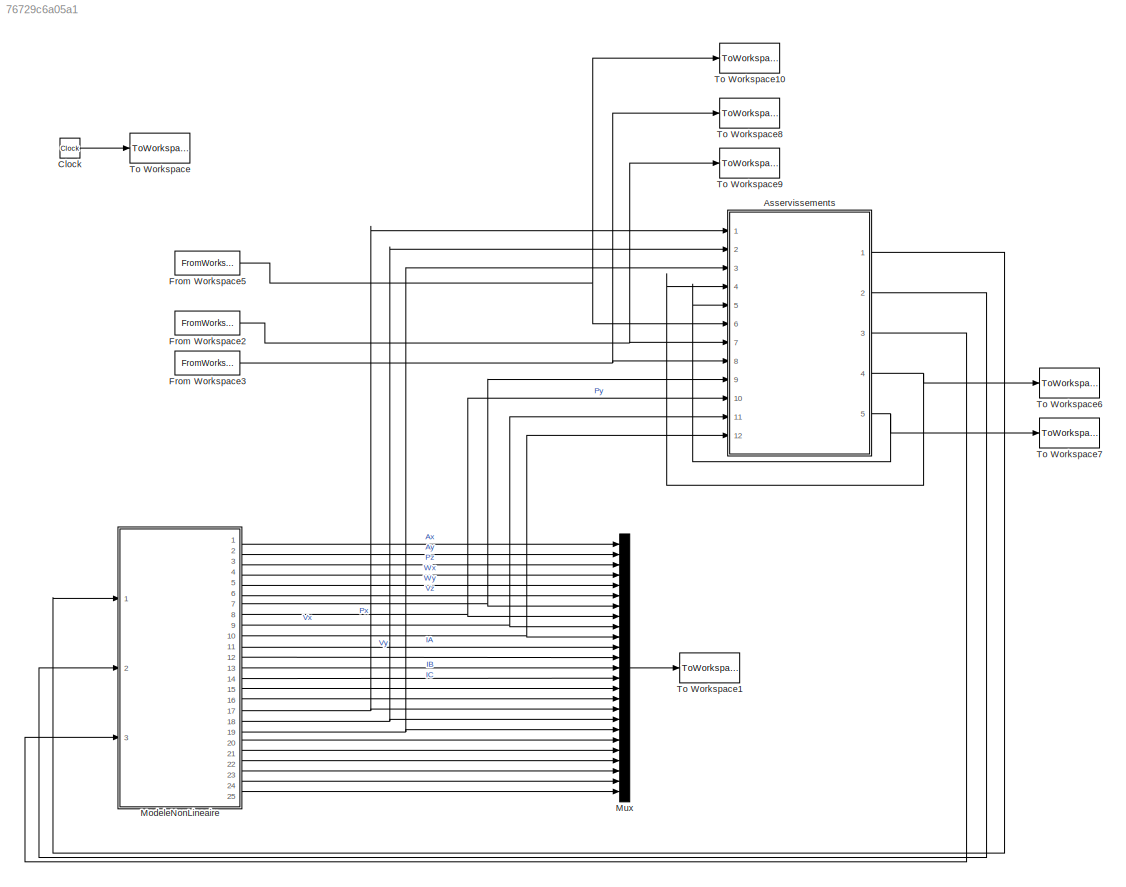
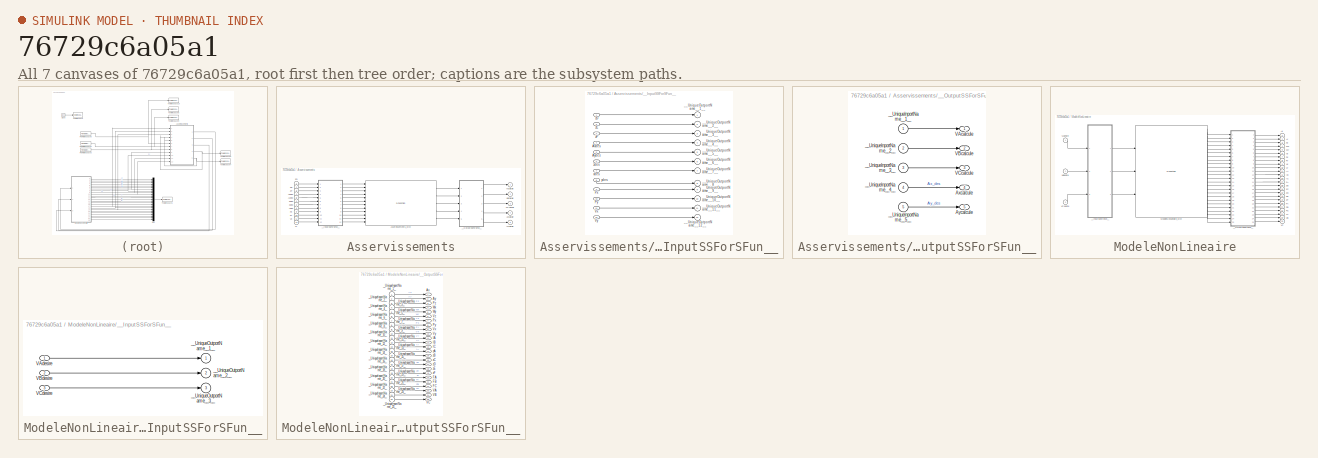
[diagram: thumbnail index - all 7 canvases of the model, root first then tree order]
MODEL slx_76729c6a05a1
KIND model
BLOCK [SubSystem] Asservissements
  Ports = [12, 5]
  RequestExecContextInheritance = off
BLOCK [S-Function] Asservissements/Asservissements_sfcn
  CopyFcn = if ~strcmp(get_param(gcb,'Linkstatus'),'none') && ...\n~strcmp(get_param(gcb,'Linkstatus'),'implicit')      \n  set_param(gcb,'LinkStatus','none');                \nend
  EnableBusSupport = off
  FunctionName = Asservissements_sf
  Ports = [12, 5]
BLOCK [Outport] Asservissements/Axcalcule
  IconDisplay = Port number
  Port = 4
BLOCK [Inport] Asservissements/Axdes
  IconDisplay = Port number
  Port = 4
BLOCK [Outport] Asservissements/Aycalcule
  IconDisplay = Port number
  Port = 5
BLOCK [Inport] Asservissements/Aydes
  IconDisplay = Port number
  Port = 5
BLOCK [Inport] Asservissements/Px
  IconDisplay = Port number
  Port = 9
BLOCK [Inport] Asservissements/Py
  IconDisplay = Port number
  Port = 10
BLOCK [Outport] Asservissements/VAcalcule
  IconDisplay = Port number
BLOCK [Outport] Asservissements/VBcalcule
  IconDisplay = Port number
  Port = 2
BLOCK [Outport] Asservissements/VCcalcule
  IconDisplay = Port number
  Port = 3
BLOCK [Inport] Asservissements/Vx
  IconDisplay = Port number
  Port = 11
BLOCK [Inport] Asservissements/Vy
  IconDisplay = Port number
  Port = 12
BLOCK [SubSystem] Asservissements/__InputSSForSFun__
  PermitHierarchicalResolution = ExplicitOnly
  Ports = [12, 12]
  RequestExecContextInheritance = off
BLOCK [Inport] Asservissements/__InputSSForSFun__/Axdes
  IconDisplay = Port number
  Port = 4
BLOCK [Inport] Asservissements/__InputSSForSFun__/Aydes
  IconDisplay = Port number
  Port = 5
BLOCK [Inport] Asservissements/__InputSSForSFun__/Px
  IconDisplay = Port number
  Port = 9
BLOCK [Inport] Asservissements/__InputSSForSFun__/Py
  IconDisplay = Port number
  Port = 10
BLOCK [Inport] Asservissements/__InputSSForSFun__/Vx
  IconDisplay = Port number
  Port = 11
BLOCK [Inport] Asservissements/__InputSSForSFun__/Vy
  IconDisplay = Port number
  Port = 12
BLOCK [Outport] Asservissements/__InputSSForSFun__/__UniqueOutportName__10__
  IconDisplay = Port number
  Port = 10
BLOCK [Outport] Asservissements/__InputSSForSFun__/__UniqueOutportName__11__
  IconDisplay = Port number
  Port = 11
BLOCK [Outport] Asservissements/__InputSSForSFun__/__UniqueOutportName__12__
  IconDisplay = Port number
  Port = 12
BLOCK [Outport] Asservissements/__InputSSForSFun__/__UniqueOutportName__1__
  IconDisplay = Port number
BLOCK [Outport] Asservissements/__InputSSForSFun__/__UniqueOutportName__2__
  IconDisplay = Port number
  Port = 2
BLOCK [Outport] Asservissements/__InputSSForSFun__/__UniqueOutportName__3__
  IconDisplay = Port number
  Port = 3
BLOCK [Outport] Asservissements/__InputSSForSFun__/__UniqueOutportName__4__
  IconDisplay = Port number
  Port = 4
BLOCK [Outport] Asservissements/__InputSSForSFun__/__UniqueOutportName__5__
  IconDisplay = Port number
  Port = 5
BLOCK [Outport] Asservissements/__InputSSForSFun__/__UniqueOutportName__6__
  IconDisplay = Port number
  Port = 6
BLOCK [Outport] Asservissements/__InputSSForSFun__/__UniqueOutportName__7__
  IconDisplay = Port number
  Port = 7
BLOCK [Outport] Asservissements/__InputSSForSFun__/__UniqueOutportName__8__
  IconDisplay = Port number
  Port = 8
BLOCK [Outport] Asservissements/__InputSSForSFun__/__UniqueOutportName__9__
  IconDisplay = Port number
  Port = 9
BLOCK [Inport] Asservissements/__InputSSForSFun__/xdes
  IconDisplay = Port number
  Port = 7
BLOCK [Inport] Asservissements/__InputSSForSFun__/ydes
  IconDisplay = Port number
  Port = 8
BLOCK [Inport] Asservissements/__InputSSForSFun__/zD
  IconDisplay = Port number
BLOCK [Inport] Asservissements/__InputSSForSFun__/zE
  IconDisplay = Port number
  Port = 2
BLOCK [Inport] Asservissements/__InputSSForSFun__/zF
  IconDisplay = Port number
  Port = 3
BLOCK [Inport] Asservissements/__InputSSForSFun__/zdes
  IconDisplay = Port number
  Port = 6
BLOCK [SubSystem] Asservissements/__OutputSSForSFun__
  PermitHierarchicalResolution = ExplicitOnly
  Ports = [5, 5]
  RequestExecContextInheritance = off
BLOCK [Outport] Asservissements/__OutputSSForSFun__/Axcalcule
  IconDisplay = Port number
  Port = 4
BLOCK [Outport] Asservissements/__OutputSSForSFun__/Aycalcule
  IconDisplay = Port number
  Port = 5
BLOCK [Outport] Asservissements/__OutputSSForSFun__/VAcalcule
  IconDisplay = Port number
BLOCK [Outport] Asservissements/__OutputSSForSFun__/VBcalcule
  IconDisplay = Port number
  Port = 2
BLOCK [Outport] Asservissements/__OutputSSForSFun__/VCcalcule
  IconDisplay = Port number
  Port = 3
BLOCK [Inport] Asservissements/__OutputSSForSFun__/__UniqueInportName__1__
  IconDisplay = Port number
BLOCK [Inport] Asservissements/__OutputSSForSFun__/__UniqueInportName__2__
  IconDisplay = Port number
  Port = 2
BLOCK [Inport] Asservissements/__OutputSSForSFun__/__UniqueInportName__3__
  IconDisplay = Port number
  Port = 3
BLOCK [Inport] Asservissements/__OutputSSForSFun__/__UniqueInportName__4__
  IconDisplay = Port number
  Port = 4
BLOCK [Inport] Asservissements/__OutputSSForSFun__/__UniqueInportName__5__
  IconDisplay = Port number
  Port = 5
BLOCK [Inport] Asservissements/xdes
  IconDisplay = Port number
  Port = 7
BLOCK [Inport] Asservissements/ydes
  IconDisplay = Port number
  Port = 8
BLOCK [Inport] Asservissements/zD
  IconDisplay = Port number
BLOCK [Inport] Asservissements/zE
  IconDisplay = Port number
  Port = 2
BLOCK [Inport] Asservissements/zF
  IconDisplay = Port number
  Port = 3
BLOCK [Inport] Asservissements/zdes
  IconDisplay = Port number
  Port = 6
BLOCK [Clock] Clock
BLOCK [FromWorkspace] From Workspace2
  Interpolate = off
  OutputAfterFinalValue = Holding final value
  SampleTime = 0
  VariableName = x_des
  ZeroCross = on
BLOCK [FromWorkspace] From Workspace3
  Interpolate = off
  OutputAfterFinalValue = Holding final value
  SampleTime = 0
  VariableName = y_des
  ZeroCross = on
BLOCK [FromWorkspace] From Workspace5
  Interpolate = off
  OutputAfterFinalValue = Holding final value
  SampleTime = 0
  VariableName = z_des
  ZeroCross = on
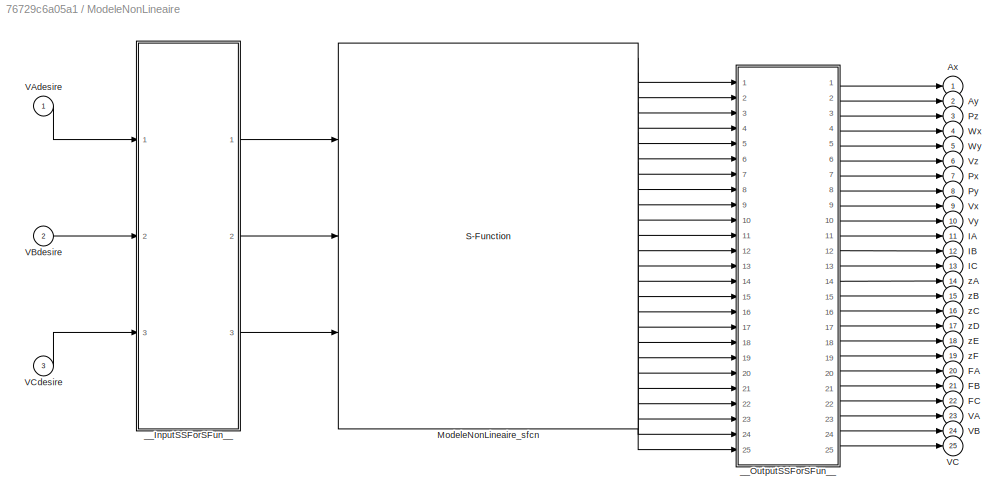
BLOCK [SubSystem] ModeleNonLineaire
  Ports = [3, 25]
  RequestExecContextInheritance = off
BLOCK [Outport] ModeleNonLineaire/Ax
  IconDisplay = Port number
BLOCK [Outport] ModeleNonLineaire/Ay
  IconDisplay = Port number
  Port = 2
BLOCK [Outport] ModeleNonLineaire/FA
  IconDisplay = Port number
  Port = 20
BLOCK [Outport] ModeleNonLineaire/FB
  IconDisplay = Port number
  Port = 21
BLOCK [Outport] ModeleNonLineaire/FC
  IconDisplay = Port number
  Port = 22
BLOCK [Outport] ModeleNonLineaire/IA
  IconDisplay = Port number
  Port = 11
BLOCK [Outport] ModeleNonLineaire/IB
  IconDisplay = Port number
  Port = 12
BLOCK [Outport] ModeleNonLineaire/IC
  IconDisplay = Port number
  Port = 13
BLOCK [S-Function] ModeleNonLineaire/ModeleNonLineaire_sfcn
  CopyFcn = if ~strcmp(get_param(gcb,'Linkstatus'),'none') && ...\n~strcmp(get_param(gcb,'Linkstatus'),'implicit')      \n  set_param(gcb,'LinkStatus','none');                \nend
  EnableBusSupport = off
  FunctionName = ModeleNonLineaire_sf
  Ports = [3, 25]
BLOCK [Outport] ModeleNonLineaire/Px
  IconDisplay = Port number
  Port = 7
BLOCK [Outport] ModeleNonLineaire/Py
  IconDisplay = Port number
  Port = 8
BLOCK [Outport] ModeleNonLineaire/Pz
  IconDisplay = Port number
  Port = 3
BLOCK [Outport] ModeleNonLineaire/VA
  IconDisplay = Port number
  Port = 23
BLOCK [Inport] ModeleNonLineaire/VAdesire
  IconDisplay = Port number
BLOCK [Outport] ModeleNonLineaire/VB
  IconDisplay = Port number
  Port = 24
BLOCK [Inport] ModeleNonLineaire/VBdesire
  IconDisplay = Port number
  Port = 2
BLOCK [Outport] ModeleNonLineaire/VC
  IconDisplay = Port number
  Port = 25
BLOCK [Inport] ModeleNonLineaire/VCdesire
  IconDisplay = Port number
  Port = 3
BLOCK [Outport] ModeleNonLineaire/Vx
  IconDisplay = Port number
  Port = 9
BLOCK [Outport] ModeleNonLineaire/Vy
  IconDisplay = Port number
  Port = 10
BLOCK [Outport] ModeleNonLineaire/Vz
  IconDisplay = Port number
  Port = 6
BLOCK [Outport] ModeleNonLineaire/Wx
  IconDisplay = Port number
  Port = 4
BLOCK [Outport] ModeleNonLineaire/Wy
  IconDisplay = Port number
  Port = 5
BLOCK [SubSystem] ModeleNonLineaire/__InputSSForSFun__
  PermitHierarchicalResolution = ExplicitOnly
  Ports = [3, 3]
  RequestExecContextInheritance = off
BLOCK [Inport] ModeleNonLineaire/__InputSSForSFun__/VAdesire
  IconDisplay = Port number
BLOCK [Inport] ModeleNonLineaire/__InputSSForSFun__/VBdesire
  IconDisplay = Port number
  Port = 2
BLOCK [Inport] ModeleNonLineaire/__InputSSForSFun__/VCdesire
  IconDisplay = Port number
  Port = 3
BLOCK [Outport] ModeleNonLineaire/__InputSSForSFun__/__UniqueOutportName__1__
  IconDisplay = Port number
BLOCK [Outport] ModeleNonLineaire/__InputSSForSFun__/__UniqueOutportName__2__
  IconDisplay = Port number
  Port = 2
BLOCK [Outport] ModeleNonLineaire/__InputSSForSFun__/__UniqueOutportName__3__
  IconDisplay = Port number
  Port = 3
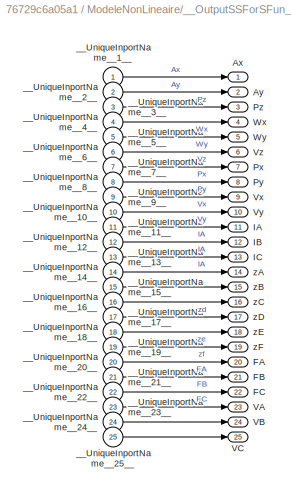
BLOCK [SubSystem] ModeleNonLineaire/__OutputSSForSFun__
  PermitHierarchicalResolution = ExplicitOnly
  Ports = [25, 25]
  RequestExecContextInheritance = off
BLOCK [Outport] ModeleNonLineaire/__OutputSSForSFun__/Ax
  IconDisplay = Port number
BLOCK [Outport] ModeleNonLineaire/__OutputSSForSFun__/Ay
  IconDisplay = Port number
  Port = 2
BLOCK [Outport] ModeleNonLineaire/__OutputSSForSFun__/FA
  IconDisplay = Port number
  Port = 20
BLOCK [Outport] ModeleNonLineaire/__OutputSSForSFun__/FB
  IconDisplay = Port number
  Port = 21
BLOCK [Outport] ModeleNonLineaire/__OutputSSForSFun__/FC
  IconDisplay = Port number
  Port = 22
BLOCK [Outport] ModeleNonLineaire/__OutputSSForSFun__/IA
  IconDisplay = Port number
  Port = 11
BLOCK [Outport] ModeleNonLineaire/__OutputSSForSFun__/IB
  IconDisplay = Port number
  Port = 12
BLOCK [Outport] ModeleNonLineaire/__OutputSSForSFun__/IC
  IconDisplay = Port number
  Port = 13
BLOCK [Outport] ModeleNonLineaire/__OutputSSForSFun__/Px
  IconDisplay = Port number
  Port = 7
BLOCK [Outport] ModeleNonLineaire/__OutputSSForSFun__/Py
  IconDisplay = Port number
  Port = 8
BLOCK [Outport] ModeleNonLineaire/__OutputSSForSFun__/Pz
  IconDisplay = Port number
  Port = 3
BLOCK [Outport] ModeleNonLineaire/__OutputSSForSFun__/VA
  IconDisplay = Port number
  Port = 23
BLOCK [Outport] ModeleNonLineaire/__OutputSSForSFun__/VB
  IconDisplay = Port number
  Port = 24
BLOCK [Outport] ModeleNonLineaire/__OutputSSForSFun__/VC
  IconDisplay = Port number
  Port = 25
BLOCK [Outport] ModeleNonLineaire/__OutputSSForSFun__/Vx
  IconDisplay = Port number
  Port = 9
BLOCK [Outport] ModeleNonLineaire/__OutputSSForSFun__/Vy
  IconDisplay = Port number
  Port = 10
BLOCK [Outport] ModeleNonLineaire/__OutputSSForSFun__/Vz
  IconDisplay = Port number
  Port = 6
BLOCK [Outport] ModeleNonLineaire/__OutputSSForSFun__/Wx
  IconDisplay = Port number
  Port = 4
BLOCK [Outport] ModeleNonLineaire/__OutputSSForSFun__/Wy
  IconDisplay = Port number
  Port = 5
BLOCK [Inport] ModeleNonLineaire/__OutputSSForSFun__/__UniqueInportName__10__
  IconDisplay = Port number
  Port = 10
BLOCK [Inport] ModeleNonLineaire/__OutputSSForSFun__/__UniqueInportName__11__
  IconDisplay = Port number
  Port = 11
BLOCK [Inport] ModeleNonLineaire/__OutputSSForSFun__/__UniqueInportName__12__
  IconDisplay = Port number
  Port = 12
BLOCK [Inport] ModeleNonLineaire/__OutputSSForSFun__/__UniqueInportName__13__
  IconDisplay = Port number
  Port = 13
BLOCK [Inport] ModeleNonLineaire/__OutputSSForSFun__/__UniqueInportName__14__
  IconDisplay = Port number
  Port = 14
BLOCK [Inport] ModeleNonLineaire/__OutputSSForSFun__/__UniqueInportName__15__
  IconDisplay = Port number
  Port = 15
BLOCK [Inport] ModeleNonLineaire/__OutputSSForSFun__/__UniqueInportName__16__
  IconDisplay = Port number
  Port = 16
BLOCK [Inport] ModeleNonLineaire/__OutputSSForSFun__/__UniqueInportName__17__
  IconDisplay = Port number
  Port = 17
BLOCK [Inport] ModeleNonLineaire/__OutputSSForSFun__/__UniqueInportName__18__
  IconDisplay = Port number
  Port = 18
BLOCK [Inport] ModeleNonLineaire/__OutputSSForSFun__/__UniqueInportName__19__
  IconDisplay = Port number
  Port = 19
BLOCK [Inport] ModeleNonLineaire/__OutputSSForSFun__/__UniqueInportName__1__
  IconDisplay = Port number
BLOCK [Inport] ModeleNonLineaire/__OutputSSForSFun__/__UniqueInportName__20__
  IconDisplay = Port number
  Port = 20
BLOCK [Inport] ModeleNonLineaire/__OutputSSForSFun__/__UniqueInportName__21__
  IconDisplay = Port number
  Port = 21
BLOCK [Inport] ModeleNonLineaire/__OutputSSForSFun__/__UniqueInportName__22__
  IconDisplay = Port number
  Port = 22
BLOCK [Inport] ModeleNonLineaire/__OutputSSForSFun__/__UniqueInportName__23__
  IconDisplay = Port number
  Port = 23
BLOCK [Inport] ModeleNonLineaire/__OutputSSForSFun__/__UniqueInportName__24__
  IconDisplay = Port number
  Port = 24
BLOCK [Inport] ModeleNonLineaire/__OutputSSForSFun__/__UniqueInportName__25__
  IconDisplay = Port number
  Port = 25
BLOCK [Inport] ModeleNonLineaire/__OutputSSForSFun__/__UniqueInportName__2__
  IconDisplay = Port number
  Port = 2
BLOCK [Inport] ModeleNonLineaire/__OutputSSForSFun__/__UniqueInportName__3__
  IconDisplay = Port number
  Port = 3
BLOCK [Inport] ModeleNonLineaire/__OutputSSForSFun__/__UniqueInportName__4__
  IconDisplay = Port number
  Port = 4
BLOCK [Inport] ModeleNonLineaire/__OutputSSForSFun__/__UniqueInportName__5__
  IconDisplay = Port number
  Port = 5
BLOCK [Inport] ModeleNonLineaire/__OutputSSForSFun__/__UniqueInportName__6__
  IconDisplay = Port number
  Port = 6
BLOCK [Inport] ModeleNonLineaire/__OutputSSForSFun__/__UniqueInportName__7__
  IconDisplay = Port number
  Port = 7
BLOCK [Inport] ModeleNonLineaire/__OutputSSForSFun__/__UniqueInportName__8__
  IconDisplay = Port number
  Port = 8
BLOCK [Inport] ModeleNonLineaire/__OutputSSForSFun__/__UniqueInportName__9__
  IconDisplay = Port number
  Port = 9
BLOCK [Outport] ModeleNonLineaire/__OutputSSForSFun__/zA
  IconDisplay = Port number
  Port = 14
BLOCK [Outport] ModeleNonLineaire/__OutputSSForSFun__/zB
  IconDisplay = Port number
  Port = 15
BLOCK [Outport] ModeleNonLineaire/__OutputSSForSFun__/zC
  IconDisplay = Port number
  Port = 16
BLOCK [Outport] ModeleNonLineaire/__OutputSSForSFun__/zD
  IconDisplay = Port number
  Port = 17
BLOCK [Outport] ModeleNonLineaire/__OutputSSForSFun__/zE
  IconDisplay = Port number
  Port = 18
BLOCK [Outport] ModeleNonLineaire/__OutputSSForSFun__/zF
  IconDisplay = Port number
  Port = 19
BLOCK [Outport] ModeleNonLineaire/zA
  IconDisplay = Port number
  Port = 14
BLOCK [Outport] ModeleNonLineaire/zB
  IconDisplay = Port number
  Port = 15
BLOCK [Outport] ModeleNonLineaire/zC
  IconDisplay = Port number
  Port = 16
BLOCK [Outport] ModeleNonLineaire/zD
  IconDisplay = Port number
  Port = 17
BLOCK [Outport] ModeleNonLineaire/zE
  IconDisplay = Port number
  Port = 18
BLOCK [Outport] ModeleNonLineaire/zF
  IconDisplay = Port number
  Port = 19
BLOCK [Mux] Mux
  DisplayOption = bar
  Inputs = 25
  Ports = [25, 1]
BLOCK [ToWorkspace] To Workspace
  MaxDataPoints = inf
  Ports = [1]
  SampleTime = -1
  VariableName = tsim
BLOCK [ToWorkspace] To Workspace1
  MaxDataPoints = inf
  Ports = [1]
  SampleTime = -1
  VariableName = ynonlineaire
BLOCK [ToWorkspace] To Workspace10
  MaxDataPoints = inf
  Ports = [1]
  SampleTime = -1
  VariableName = z_des_out
BLOCK [ToWorkspace] To Workspace6
  MaxDataPoints = inf
  Ports = [1]
  SampleTime = -1
  VariableName = Ax_des
BLOCK [ToWorkspace] To Workspace7
  MaxDataPoints = inf
  Ports = [1]
  SampleTime = -1
  VariableName = Ay_des
BLOCK [ToWorkspace] To Workspace8
  MaxDataPoints = inf
  Ports = [1]
  SampleTime = -1
  VariableName = y_des_out
BLOCK [ToWorkspace] To Workspace9
  MaxDataPoints = inf
  Ports = [1]
  SampleTime = -1
  VariableName = x_des_out
LINE Asservissements/Asservissements_sfcn:1 -> Asservissements/__OutputSSForSFun__:1
LINE Asservissements/Asservissements_sfcn:2 -> Asservissements/__OutputSSForSFun__:2
LINE Asservissements/Asservissements_sfcn:3 -> Asservissements/__OutputSSForSFun__:3
LINE Asservissements/Asservissements_sfcn:4 -> Asservissements/__OutputSSForSFun__:4
LINE Asservissements/Asservissements_sfcn:5 -> Asservissements/__OutputSSForSFun__:5
LINE Asservissements/Axdes:1 -> Asservissements/__InputSSForSFun__:4
LINE Asservissements/Aydes:1 -> Asservissements/__InputSSForSFun__:5
LINE Asservissements/Px:1 -> Asservissements/__InputSSForSFun__:9
LINE Asservissements/Py:1 -> Asservissements/__InputSSForSFun__:10
LINE Asservissements/Vx:1 -> Asservissements/__InputSSForSFun__:11
LINE Asservissements/Vy:1 -> Asservissements/__InputSSForSFun__:12
LINE Asservissements/__InputSSForSFun__/Axdes:1 -> Asservissements/__InputSSForSFun__/__UniqueOutportName__4__:1
LINE Asservissements/__InputSSForSFun__/Aydes:1 -> Asservissements/__InputSSForSFun__/__UniqueOutportName__5__:1
LINE Asservissements/__InputSSForSFun__/Px:1 -> Asservissements/__InputSSForSFun__/__UniqueOutportName__9__:1
LINE Asservissements/__InputSSForSFun__/Py:1 -> Asservissements/__InputSSForSFun__/__UniqueOutportName__10__:1
LINE Asservissements/__InputSSForSFun__/Vx:1 -> Asservissements/__InputSSForSFun__/__UniqueOutportName__11__:1
LINE Asservissements/__InputSSForSFun__/Vy:1 -> Asservissements/__InputSSForSFun__/__UniqueOutportName__12__:1
LINE Asservissements/__InputSSForSFun__/xdes:1 -> Asservissements/__InputSSForSFun__/__UniqueOutportName__7__:1
LINE Asservissements/__InputSSForSFun__/ydes:1 -> Asservissements/__InputSSForSFun__/__UniqueOutportName__8__:1
LINE Asservissements/__InputSSForSFun__/zD:1 -> Asservissements/__InputSSForSFun__/__UniqueOutportName__1__:1
LINE Asservissements/__InputSSForSFun__/zE:1 -> Asservissements/__InputSSForSFun__/__UniqueOutportName__2__:1
LINE Asservissements/__InputSSForSFun__/zF:1 -> Asservissements/__InputSSForSFun__/__UniqueOutportName__3__:1
LINE Asservissements/__InputSSForSFun__/zdes:1 -> Asservissements/__InputSSForSFun__/__UniqueOutportName__6__:1
LINE Asservissements/__InputSSForSFun__:1 -> Asservissements/Asservissements_sfcn:1
LINE Asservissements/__InputSSForSFun__:10 -> Asservissements/Asservissements_sfcn:10
LINE Asservissements/__InputSSForSFun__:11 -> Asservissements/Asservissements_sfcn:11
LINE Asservissements/__InputSSForSFun__:12 -> Asservissements/Asservissements_sfcn:12
LINE Asservissements/__InputSSForSFun__:2 -> Asservissements/Asservissements_sfcn:2
LINE Asservissements/__InputSSForSFun__:3 -> Asservissements/Asservissements_sfcn:3
LINE Asservissements/__InputSSForSFun__:4 -> Asservissements/Asservissements_sfcn:4
LINE Asservissements/__InputSSForSFun__:5 -> Asservissements/Asservissements_sfcn:5
LINE Asservissements/__InputSSForSFun__:6 -> Asservissements/Asservissements_sfcn:6
LINE Asservissements/__InputSSForSFun__:7 -> Asservissements/Asservissements_sfcn:7
LINE Asservissements/__InputSSForSFun__:8 -> Asservissements/Asservissements_sfcn:8
LINE Asservissements/__InputSSForSFun__:9 -> Asservissements/Asservissements_sfcn:9
LINE Asservissements/__OutputSSForSFun__/__UniqueInportName__1__:1 -> Asservissements/__OutputSSForSFun__/VAcalcule:1
LINE Asservissements/__OutputSSForSFun__/__UniqueInportName__2__:1 -> Asservissements/__OutputSSForSFun__/VBcalcule:1
LINE Asservissements/__OutputSSForSFun__/__UniqueInportName__3__:1 -> Asservissements/__OutputSSForSFun__/VCcalcule:1
LINE Asservissements/__OutputSSForSFun__/__UniqueInportName__4__:1 -> Asservissements/__OutputSSForSFun__/Axcalcule:1
LINE Asservissements/__OutputSSForSFun__/__UniqueInportName__5__:1 -> Asservissements/__OutputSSForSFun__/Aycalcule:1
LINE Asservissements/__OutputSSForSFun__:1 -> Asservissements/VAcalcule:1
LINE Asservissements/__OutputSSForSFun__:2 -> Asservissements/VBcalcule:1
LINE Asservissements/__OutputSSForSFun__:3 -> Asservissements/VCcalcule:1
LINE Asservissements/__OutputSSForSFun__:4 -> Asservissements/Axcalcule:1
LINE Asservissements/__OutputSSForSFun__:5 -> Asservissements/Aycalcule:1
LINE Asservissements/xdes:1 -> Asservissements/__InputSSForSFun__:7
LINE Asservissements/ydes:1 -> Asservissements/__InputSSForSFun__:8
LINE Asservissements/zD:1 -> Asservissements/__InputSSForSFun__:1
LINE Asservissements/zE:1 -> Asservissements/__InputSSForSFun__:2
LINE Asservissements/zF:1 -> Asservissements/__InputSSForSFun__:3
LINE Asservissements/zdes:1 -> Asservissements/__InputSSForSFun__:6
LINE Asservissements:1 -> ModeleNonLineaire:1
LINE Asservissements:2 -> ModeleNonLineaire:2
LINE Asservissements:3 -> ModeleNonLineaire:3
NET Asservissements:4 -> Asservissements:4, To Workspace6:1
NET Asservissements:5 -> Asservissements:5, To Workspace7:1
LINE Clock:1 -> To Workspace:1
NET From Workspace2:1 -> Asservissements:7, To Workspace9:1
NET From Workspace3:1 -> Asservissements:8, To Workspace8:1
NET From Workspace5:1 -> Asservissements:6, To Workspace10:1
LINE ModeleNonLineaire/ModeleNonLineaire_sfcn:1 -> ModeleNonLineaire/__OutputSSForSFun__:1
LINE ModeleNonLineaire/ModeleNonLineaire_sfcn:10 -> ModeleNonLineaire/__OutputSSForSFun__:10
LINE ModeleNonLineaire/ModeleNonLineaire_sfcn:11 -> ModeleNonLineaire/__OutputSSForSFun__:11
LINE ModeleNonLineaire/ModeleNonLineaire_sfcn:12 -> ModeleNonLineaire/__OutputSSForSFun__:12
LINE ModeleNonLineaire/ModeleNonLineaire_sfcn:13 -> ModeleNonLineaire/__OutputSSForSFun__:13
LINE ModeleNonLineaire/ModeleNonLineaire_sfcn:14 -> ModeleNonLineaire/__OutputSSForSFun__:14
LINE ModeleNonLineaire/ModeleNonLineaire_sfcn:15 -> ModeleNonLineaire/__OutputSSForSFun__:15
LINE ModeleNonLineaire/ModeleNonLineaire_sfcn:16 -> ModeleNonLineaire/__OutputSSForSFun__:16
LINE ModeleNonLineaire/ModeleNonLineaire_sfcn:17 -> ModeleNonLineaire/__OutputSSForSFun__:17
LINE ModeleNonLineaire/ModeleNonLineaire_sfcn:18 -> ModeleNonLineaire/__OutputSSForSFun__:18
LINE ModeleNonLineaire/ModeleNonLineaire_sfcn:19 -> ModeleNonLineaire/__OutputSSForSFun__:19
LINE ModeleNonLineaire/ModeleNonLineaire_sfcn:2 -> ModeleNonLineaire/__OutputSSForSFun__:2
LINE ModeleNonLineaire/ModeleNonLineaire_sfcn:20 -> ModeleNonLineaire/__OutputSSForSFun__:20
LINE ModeleNonLineaire/ModeleNonLineaire_sfcn:21 -> ModeleNonLineaire/__OutputSSForSFun__:21
LINE ModeleNonLineaire/ModeleNonLineaire_sfcn:22 -> ModeleNonLineaire/__OutputSSForSFun__:22
LINE ModeleNonLineaire/ModeleNonLineaire_sfcn:23 -> ModeleNonLineaire/__OutputSSForSFun__:23
LINE ModeleNonLineaire/ModeleNonLineaire_sfcn:24 -> ModeleNonLineaire/__OutputSSForSFun__:24
LINE ModeleNonLineaire/ModeleNonLineaire_sfcn:25 -> ModeleNonLineaire/__OutputSSForSFun__:25
LINE ModeleNonLineaire/ModeleNonLineaire_sfcn:3 -> ModeleNonLineaire/__OutputSSForSFun__:3
LINE ModeleNonLineaire/ModeleNonLineaire_sfcn:4 -> ModeleNonLineaire/__OutputSSForSFun__:4
LINE ModeleNonLineaire/ModeleNonLineaire_sfcn:5 -> ModeleNonLineaire/__OutputSSForSFun__:5
LINE ModeleNonLineaire/ModeleNonLineaire_sfcn:6 -> ModeleNonLineaire/__OutputSSForSFun__:6
LINE ModeleNonLineaire/ModeleNonLineaire_sfcn:7 -> ModeleNonLineaire/__OutputSSForSFun__:7
LINE ModeleNonLineaire/ModeleNonLineaire_sfcn:8 -> ModeleNonLineaire/__OutputSSForSFun__:8
LINE ModeleNonLineaire/ModeleNonLineaire_sfcn:9 -> ModeleNonLineaire/__OutputSSForSFun__:9
LINE ModeleNonLineaire/VAdesire:1 -> ModeleNonLineaire/__InputSSForSFun__:1
LINE ModeleNonLineaire/VBdesire:1 -> ModeleNonLineaire/__InputSSForSFun__:2
LINE ModeleNonLineaire/VCdesire:1 -> ModeleNonLineaire/__InputSSForSFun__:3
LINE ModeleNonLineaire/__InputSSForSFun__/VAdesire:1 -> ModeleNonLineaire/__InputSSForSFun__/__UniqueOutportName__1__:1
LINE ModeleNonLineaire/__InputSSForSFun__/VBdesire:1 -> ModeleNonLineaire/__InputSSForSFun__/__UniqueOutportName__2__:1
LINE ModeleNonLineaire/__InputSSForSFun__/VCdesire:1 -> ModeleNonLineaire/__InputSSForSFun__/__UniqueOutportName__3__:1
LINE ModeleNonLineaire/__InputSSForSFun__:1 -> ModeleNonLineaire/ModeleNonLineaire_sfcn:1
LINE ModeleNonLineaire/__InputSSForSFun__:2 -> ModeleNonLineaire/ModeleNonLineaire_sfcn:2
LINE ModeleNonLineaire/__InputSSForSFun__:3 -> ModeleNonLineaire/ModeleNonLineaire_sfcn:3
LINE ModeleNonLineaire/__OutputSSForSFun__/__UniqueInportName__10__:1 -> ModeleNonLineaire/__OutputSSForSFun__/Vy:1
LINE ModeleNonLineaire/__OutputSSForSFun__/__UniqueInportName__11__:1 -> ModeleNonLineaire/__OutputSSForSFun__/IA:1
LINE ModeleNonLineaire/__OutputSSForSFun__/__UniqueInportName__12__:1 -> ModeleNonLineaire/__OutputSSForSFun__/IB:1
LINE ModeleNonLineaire/__OutputSSForSFun__/__UniqueInportName__13__:1 -> ModeleNonLineaire/__OutputSSForSFun__/IC:1
LINE ModeleNonLineaire/__OutputSSForSFun__/__UniqueInportName__14__:1 -> ModeleNonLineaire/__OutputSSForSFun__/zA:1
LINE ModeleNonLineaire/__OutputSSForSFun__/__UniqueInportName__15__:1 -> ModeleNonLineaire/__OutputSSForSFun__/zB:1
LINE ModeleNonLineaire/__OutputSSForSFun__/__UniqueInportName__16__:1 -> ModeleNonLineaire/__OutputSSForSFun__/zC:1
LINE ModeleNonLineaire/__OutputSSForSFun__/__UniqueInportName__17__:1 -> ModeleNonLineaire/__OutputSSForSFun__/zD:1
LINE ModeleNonLineaire/__OutputSSForSFun__/__UniqueInportName__18__:1 -> ModeleNonLineaire/__OutputSSForSFun__/zE:1
LINE ModeleNonLineaire/__OutputSSForSFun__/__UniqueInportName__19__:1 -> ModeleNonLineaire/__OutputSSForSFun__/zF:1
LINE ModeleNonLineaire/__OutputSSForSFun__/__UniqueInportName__1__:1 -> ModeleNonLineaire/__OutputSSForSFun__/Ax:1
LINE ModeleNonLineaire/__OutputSSForSFun__/__UniqueInportName__20__:1 -> ModeleNonLineaire/__OutputSSForSFun__/FA:1
LINE ModeleNonLineaire/__OutputSSForSFun__/__UniqueInportName__21__:1 -> ModeleNonLineaire/__OutputSSForSFun__/FB:1
LINE ModeleNonLineaire/__OutputSSForSFun__/__UniqueInportName__22__:1 -> ModeleNonLineaire/__OutputSSForSFun__/FC:1
LINE ModeleNonLineaire/__OutputSSForSFun__/__UniqueInportName__23__:1 -> ModeleNonLineaire/__OutputSSForSFun__/VA:1
LINE ModeleNonLineaire/__OutputSSForSFun__/__UniqueInportName__24__:1 -> ModeleNonLineaire/__OutputSSForSFun__/VB:1
LINE ModeleNonLineaire/__OutputSSForSFun__/__UniqueInportName__25__:1 -> ModeleNonLineaire/__OutputSSForSFun__/VC:1
LINE ModeleNonLineaire/__OutputSSForSFun__/__UniqueInportName__2__:1 -> ModeleNonLineaire/__OutputSSForSFun__/Ay:1
LINE ModeleNonLineaire/__OutputSSForSFun__/__UniqueInportName__3__:1 -> ModeleNonLineaire/__OutputSSForSFun__/Pz:1
LINE ModeleNonLineaire/__OutputSSForSFun__/__UniqueInportName__4__:1 -> ModeleNonLineaire/__OutputSSForSFun__/Wx:1
LINE ModeleNonLineaire/__OutputSSForSFun__/__UniqueInportName__5__:1 -> ModeleNonLineaire/__OutputSSForSFun__/Wy:1
LINE ModeleNonLineaire/__OutputSSForSFun__/__UniqueInportName__6__:1 -> ModeleNonLineaire/__OutputSSForSFun__/Vz:1
LINE ModeleNonLineaire/__OutputSSForSFun__/__UniqueInportName__7__:1 -> ModeleNonLineaire/__OutputSSForSFun__/Px:1
LINE ModeleNonLineaire/__OutputSSForSFun__/__UniqueInportName__8__:1 -> ModeleNonLineaire/__OutputSSForSFun__/Py:1
LINE ModeleNonLineaire/__OutputSSForSFun__/__UniqueInportName__9__:1 -> ModeleNonLineaire/__OutputSSForSFun__/Vx:1
LINE ModeleNonLineaire/__OutputSSForSFun__:1 -> ModeleNonLineaire/Ax:1
LINE ModeleNonLineaire/__OutputSSForSFun__:10 -> ModeleNonLineaire/Vy:1
LINE ModeleNonLineaire/__OutputSSForSFun__:11 -> ModeleNonLineaire/IA:1
LINE ModeleNonLineaire/__OutputSSForSFun__:12 -> ModeleNonLineaire/IB:1
LINE ModeleNonLineaire/__OutputSSForSFun__:13 -> ModeleNonLineaire/IC:1
LINE ModeleNonLineaire/__OutputSSForSFun__:14 -> ModeleNonLineaire/zA:1
LINE ModeleNonLineaire/__OutputSSForSFun__:15 -> ModeleNonLineaire/zB:1
LINE ModeleNonLineaire/__OutputSSForSFun__:16 -> ModeleNonLineaire/zC:1
LINE ModeleNonLineaire/__OutputSSForSFun__:17 -> ModeleNonLineaire/zD:1
LINE ModeleNonLineaire/__OutputSSForSFun__:18 -> ModeleNonLineaire/zE:1
LINE ModeleNonLineaire/__OutputSSForSFun__:19 -> ModeleNonLineaire/zF:1
LINE ModeleNonLineaire/__OutputSSForSFun__:2 -> ModeleNonLineaire/Ay:1
LINE ModeleNonLineaire/__OutputSSForSFun__:20 -> ModeleNonLineaire/FA:1
LINE ModeleNonLineaire/__OutputSSForSFun__:21 -> ModeleNonLineaire/FB:1
LINE ModeleNonLineaire/__OutputSSForSFun__:22 -> ModeleNonLineaire/FC:1
LINE ModeleNonLineaire/__OutputSSForSFun__:23 -> ModeleNonLineaire/VA:1
LINE ModeleNonLineaire/__OutputSSForSFun__:24 -> ModeleNonLineaire/VB:1
LINE ModeleNonLineaire/__OutputSSForSFun__:25 -> ModeleNonLineaire/VC:1
LINE ModeleNonLineaire/__OutputSSForSFun__:3 -> ModeleNonLineaire/Pz:1
LINE ModeleNonLineaire/__OutputSSForSFun__:4 -> ModeleNonLineaire/Wx:1
LINE ModeleNonLineaire/__OutputSSForSFun__:5 -> ModeleNonLineaire/Wy:1
LINE ModeleNonLineaire/__OutputSSForSFun__:6 -> ModeleNonLineaire/Vz:1
LINE ModeleNonLineaire/__OutputSSForSFun__:7 -> ModeleNonLineaire/Px:1
LINE ModeleNonLineaire/__OutputSSForSFun__:8 -> ModeleNonLineaire/Py:1
LINE ModeleNonLineaire/__OutputSSForSFun__:9 -> ModeleNonLineaire/Vx:1
LINE ModeleNonLineaire:1 -> Mux:1
NET ModeleNonLineaire:10 -> Asservissements:12, Mux:10
LINE ModeleNonLineaire:11 -> Mux:11
LINE ModeleNonLineaire:12 -> Mux:12
LINE ModeleNonLineaire:13 -> Mux:13
LINE ModeleNonLineaire:14 -> Mux:14
LINE ModeleNonLineaire:15 -> Mux:15
LINE ModeleNonLineaire:16 -> Mux:16
NET ModeleNonLineaire:17 -> Asservissements:1, Mux:17
NET ModeleNonLineaire:18 -> Asservissements:2, Mux:18
NET ModeleNonLineaire:19 -> Asservissements:3, Mux:19
LINE ModeleNonLineaire:2 -> Mux:2
LINE ModeleNonLineaire:20 -> Mux:20
LINE ModeleNonLineaire:21 -> Mux:21
LINE ModeleNonLineaire:22 -> Mux:22
LINE ModeleNonLineaire:23 -> Mux:23
LINE ModeleNonLineaire:24 -> Mux:24
LINE ModeleNonLineaire:25 -> Mux:25
LINE ModeleNonLineaire:3 -> Mux:3
LINE ModeleNonLineaire:4 -> Mux:4
LINE ModeleNonLineaire:5 -> Mux:5
LINE ModeleNonLineaire:6 -> Mux:6
NET ModeleNonLineaire:7 -> Asservissements:9, Mux:7
NET ModeleNonLineaire:8 -> Asservissements:10, Mux:8
NET ModeleNonLineaire:9 -> Asservissements:11, Mux:9
LINE Mux:1 -> To Workspace1:1
note: NET lines group one-source signal fan-out (src -> all destinations, sorted); 1:1 wires keep LINE
